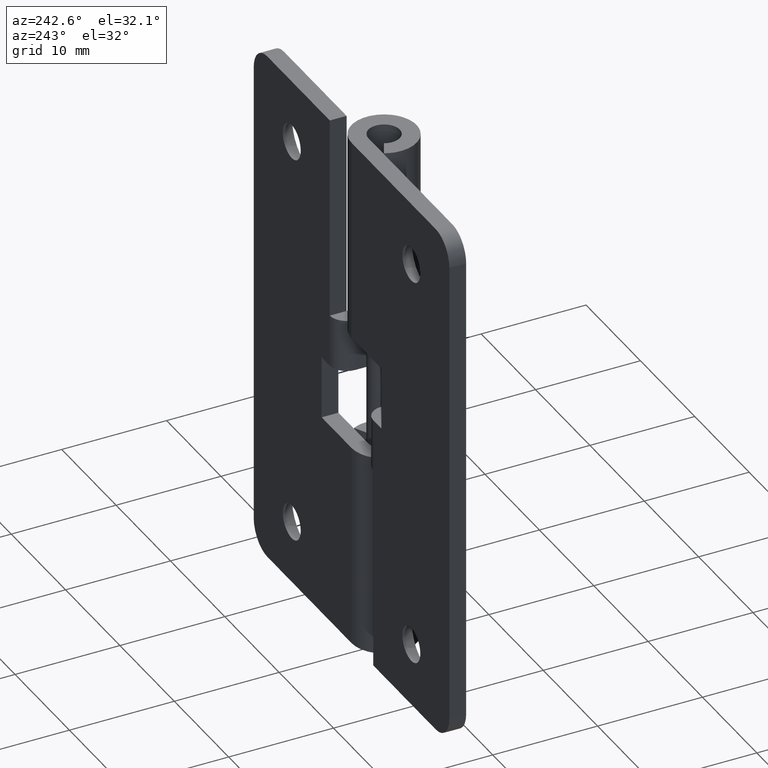
[diagram: clean part render]
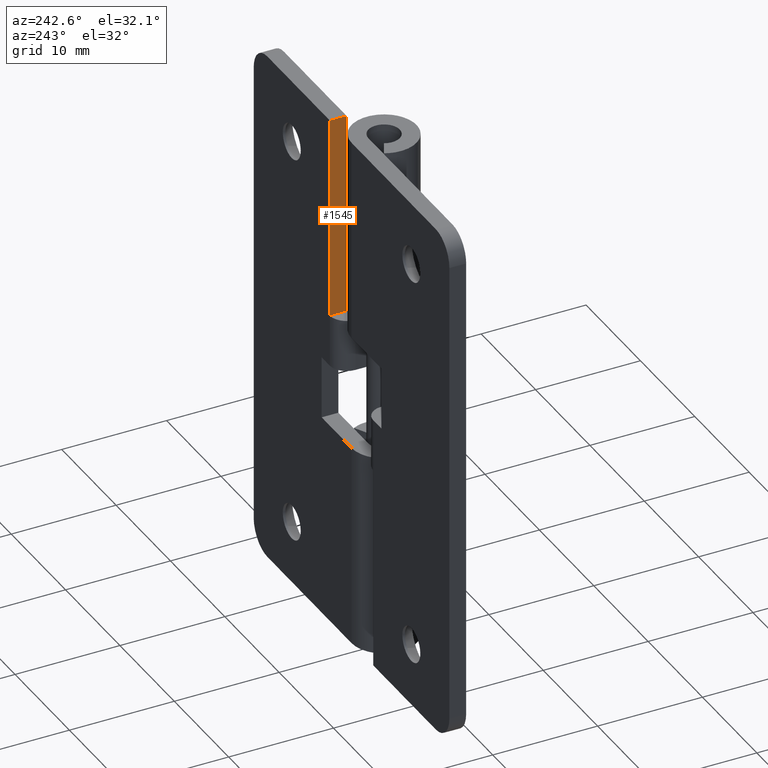
[diagram: same view with one face highlighted and labeled with its STEP entity id]
A machine part, auxiliary view. The second image highlights one B-rep face of the part: STEP entity #1545.
In plain terms, the highlighted face is a freeform B-spline surface patch.
Its self-contained STEP definition (entity closure, byte-faithful):
#1228=CARTESIAN_POINT('',(4.000004999999915,3.100004000000000,30.500008000000001));
#1229=VERTEX_POINT('',#1228);
#1299=CARTESIAN_POINT('',(4.0,1.500014999999965,30.500008000000001));
#1300=VERTEX_POINT('',#1299);
#1320=CARTESIAN_POINT('',(4.0,1.500014999999965,30.500008000000001));
#1321=CARTESIAN_POINT('',(4.000004999999915,3.100004000000000,30.500008000000001));
#1322=QUASI_UNIFORM_CURVE('',1,(#1320,#1321),.UNSPECIFIED.,.F.,.U.);
#1323=EDGE_CURVE('',#1300,#1229,#1322,.T.);
#1518=CARTESIAN_POINT('',(4.0,1.420095573286889,50.974040677959437));
#1519=CARTESIAN_POINT('',(4.0,1.420095573286889,29.525982147696919));
#1520=CARTESIAN_POINT('',(4.0,3.179923369493011,50.974040677959437));
#1521=CARTESIAN_POINT('',(4.0,3.179923369493011,29.525982147696919));
#1522=B_SPLINE_SURFACE_WITH_KNOTS('',1,1,((#1518,#1520),(#1519,#1521)),.UNSPECIFIED.,.F.,.F.,.U.,(2,2),(2,2),(0.0,21.448058530262522),(0.041708345748484,0.958291624449193),.UNSPECIFIED.);
#1523=CARTESIAN_POINT('',(4.0,3.100002000000045,50.000008000000001));
#1524=VERTEX_POINT('',#1523);
#1525=CARTESIAN_POINT('',(4.0,3.100002000000045,50.000008000000001));
#1526=CARTESIAN_POINT('',(4.000004999999915,3.100004000000000,30.500008000000001));
#1527=QUASI_UNIFORM_CURVE('',1,(#1525,#1526),.UNSPECIFIED.,.F.,.U.);
#1528=EDGE_CURVE('',#1524,#1229,#1527,.T.);
#1529=ORIENTED_EDGE('',*,*,#1528,.T.);
#1530=ORIENTED_EDGE('',*,*,#1323,.F.);
#1531=CARTESIAN_POINT('',(4.0,1.500015000000000,50.000015000000012));
#1532=VERTEX_POINT('',#1531);
#1533=CARTESIAN_POINT('',(4.0,1.500014999999965,30.500008000000001));
#1534=CARTESIAN_POINT('',(4.0,1.500015000000000,50.000015000000012));
#1535=QUASI_UNIFORM_CURVE('',1,(#1533,#1534),.UNSPECIFIED.,.F.,.U.);
#1536=EDGE_CURVE('',#1300,#1532,#1535,.T.);
#1537=ORIENTED_EDGE('',*,*,#1536,.T.);
#1538=CARTESIAN_POINT('',(4.0,1.500015000000000,50.000015000000012));
#1539=CARTESIAN_POINT('',(4.0,3.100002000000045,50.000008000000001));
#1540=QUASI_UNIFORM_CURVE('',1,(#1538,#1539),.UNSPECIFIED.,.F.,.U.);
#1541=EDGE_CURVE('',#1532,#1524,#1540,.T.);
#1542=ORIENTED_EDGE('',*,*,#1541,.T.);
#1543=EDGE_LOOP('',(#1529,#1530,#1537,#1542));
#1544=FACE_OUTER_BOUND('',#1543,.T.);
#1545=ADVANCED_FACE('',(#1544),#1522,.F.);